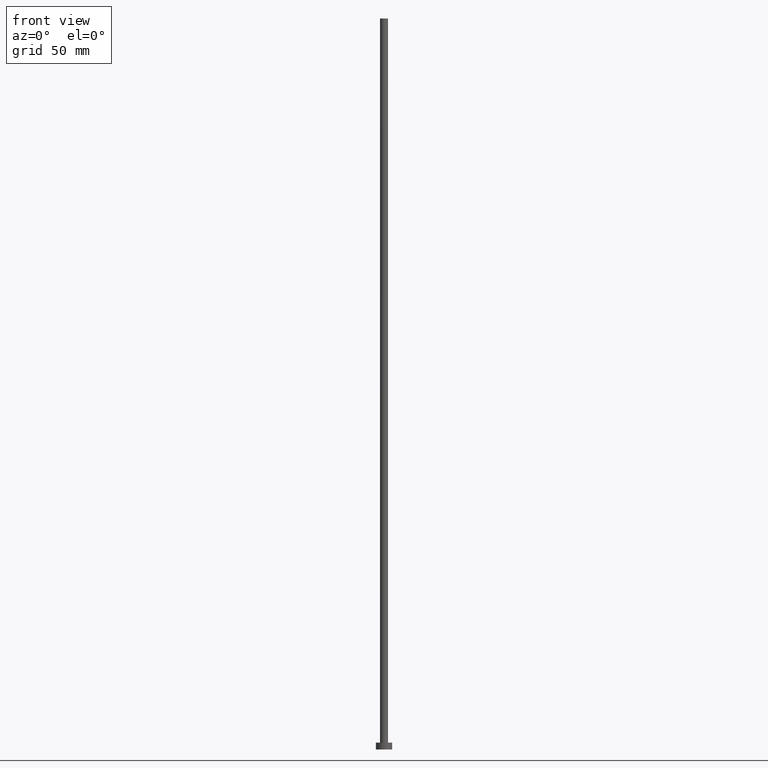
[diagram: clean part render]
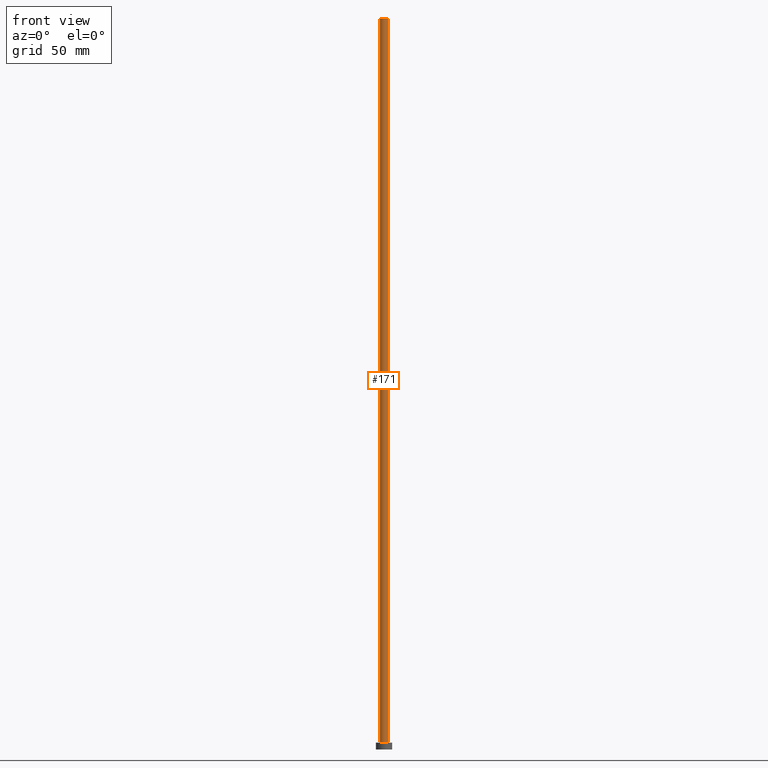
[diagram: same view with one face highlighted and labeled with its STEP entity id]
A machine part, front view. The second image highlights one B-rep face of the part: STEP entity #171.
In plain terms, the highlighted cylindrical surface (edge-blend (fillet) strip) has radius 1.75 mm, axis along (-0, -0, -1).
Its self-contained STEP definition (entity closure, byte-faithful):
#3 = LINE ( 'NONE', #85, #44 ) ;
#8 = EDGE_CURVE ( 'NONE', #156, #35, #140, .T. ) ;
#12 = CIRCLE ( 'NONE', #24, 1.750000000000000000 ) ;
#24 = AXIS2_PLACEMENT_3D ( 'NONE', #240, #210, #208 ) ;
#33 = DIRECTION ( 'NONE',  ( -0.000000000000000000, -0.000000000000000000, -1.000000000000000000 ) ) ;
#35 = VERTEX_POINT ( 'NONE', #37 ) ;
#37 = CARTESIAN_POINT ( 'NONE',  ( 1.750000000000000000, 2.143131898507868297E-16, 3.000000000000000000 ) ) ;
#39 = CARTESIAN_POINT ( 'NONE',  ( 0.000000000000000000, 0.000000000000000000, 315.0000000000000000 ) ) ;
#44 = VECTOR ( 'NONE', #149, 1000.000000000000000 ) ;
#54 = ORIENTED_EDGE ( 'NONE', *, *, #157, .F. ) ;
#57 = ORIENTED_EDGE ( 'NONE', *, *, #61, .T. ) ;
#59 = EDGE_LOOP ( 'NONE', ( #80, #54, #57, #226 ) ) ;
#60 = CARTESIAN_POINT ( 'NONE',  ( 1.750000000000000000, 2.143131898507868297E-16, 315.0000000000000000 ) ) ;
#61 = EDGE_CURVE ( 'NONE', #189, #109, #3, .T. ) ;
#75 = AXIS2_PLACEMENT_3D ( 'NONE', #39, #128, #100 ) ;
#78 = DIRECTION ( 'NONE',  ( -0.000000000000000000, -0.000000000000000000, -1.000000000000000000 ) ) ;
#79 = CARTESIAN_POINT ( 'NONE',  ( -1.750000000000000000, 0.000000000000000000, 3.000000000000000000 ) ) ;
#80 = ORIENTED_EDGE ( 'NONE', *, *, #8, .F. ) ;
#85 = CARTESIAN_POINT ( 'NONE',  ( -1.750000000000000000, 0.000000000000000000, 315.0000000000000000 ) ) ;
#97 = CARTESIAN_POINT ( 'NONE',  ( 0.000000000000000000, 0.000000000000000000, 315.0000000000000000 ) ) ;
#100 = DIRECTION ( 'NONE',  ( 1.000000000000000000, 0.000000000000000000, 0.000000000000000000 ) ) ;
#109 = VERTEX_POINT ( 'NONE', #79 ) ;
#120 = DIRECTION ( 'NONE',  ( -1.000000000000000000, 0.000000000000000000, 0.000000000000000000 ) ) ;
#128 = DIRECTION ( 'NONE',  ( 0.000000000000000000, 0.000000000000000000, 1.000000000000000000 ) ) ;
#132 = CYLINDRICAL_SURFACE ( 'NONE', #232, 1.750000000000000000 ) ;
#140 = LINE ( 'NONE', #60, #196 ) ;
#149 = DIRECTION ( 'NONE',  ( -0.000000000000000000, -0.000000000000000000, -1.000000000000000000 ) ) ;
#150 = FACE_OUTER_BOUND ( 'NONE', #59, .T. ) ;
#156 = VERTEX_POINT ( 'NONE', #231 ) ;
#157 = EDGE_CURVE ( 'NONE', #189, #156, #190, .T. ) ;
#171 = ADVANCED_FACE ( 'NONE', ( #150 ), #132, .T. ) ;
#189 = VERTEX_POINT ( 'NONE', #254 ) ;
#190 = CIRCLE ( 'NONE', #75, 1.750000000000000000 ) ;
#193 = EDGE_CURVE ( 'NONE', #109, #35, #12, .T. ) ;
#196 = VECTOR ( 'NONE', #78, 1000.000000000000000 ) ;
#208 = DIRECTION ( 'NONE',  ( 1.000000000000000000, 0.000000000000000000, 0.000000000000000000 ) ) ;
#210 = DIRECTION ( 'NONE',  ( 0.000000000000000000, 0.000000000000000000, 1.000000000000000000 ) ) ;
#226 = ORIENTED_EDGE ( 'NONE', *, *, #193, .T. ) ;
#231 = CARTESIAN_POINT ( 'NONE',  ( 1.750000000000000000, 2.143131898507868297E-16, 315.0000000000000000 ) ) ;
#232 = AXIS2_PLACEMENT_3D ( 'NONE', #97, #33, #120 ) ;
#240 = CARTESIAN_POINT ( 'NONE',  ( 0.000000000000000000, 0.000000000000000000, 3.000000000000000000 ) ) ;
#254 = CARTESIAN_POINT ( 'NONE',  ( -1.750000000000000000, 0.000000000000000000, 315.0000000000000000 ) ) ;